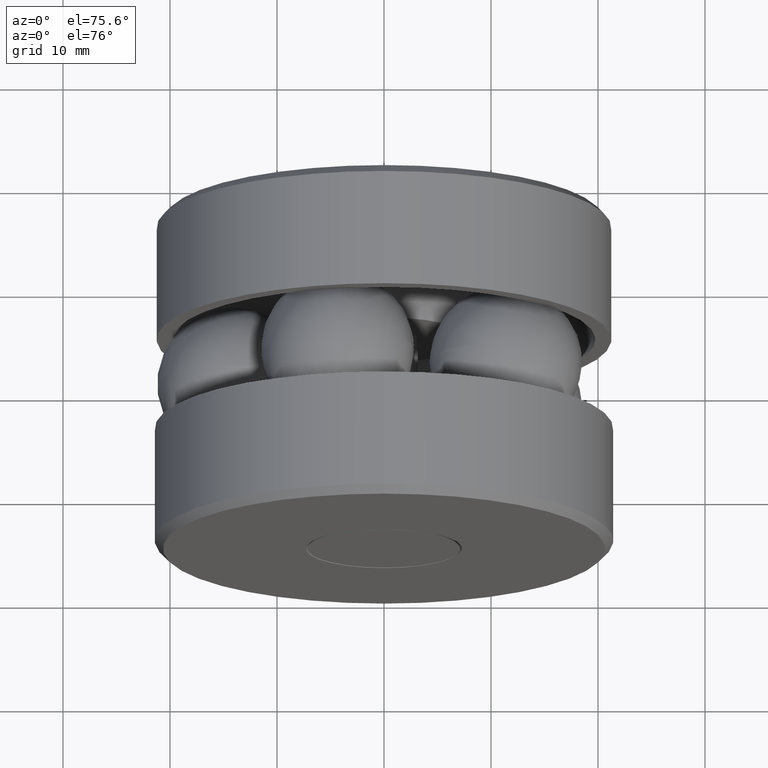
[diagram: clean part render]
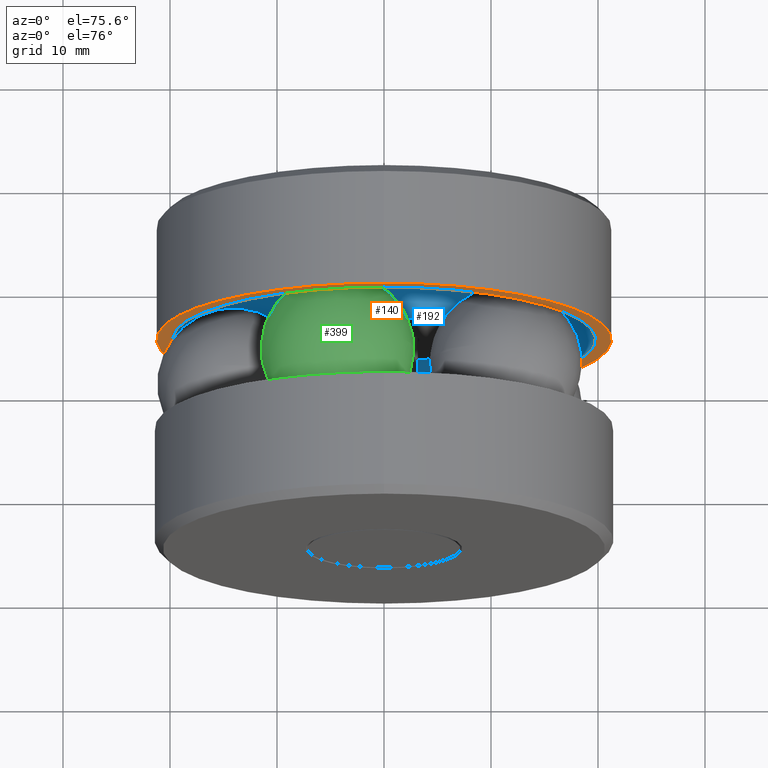
[diagram: same view with three faces highlighted in distinct colors, each labeled with its STEP entity id]
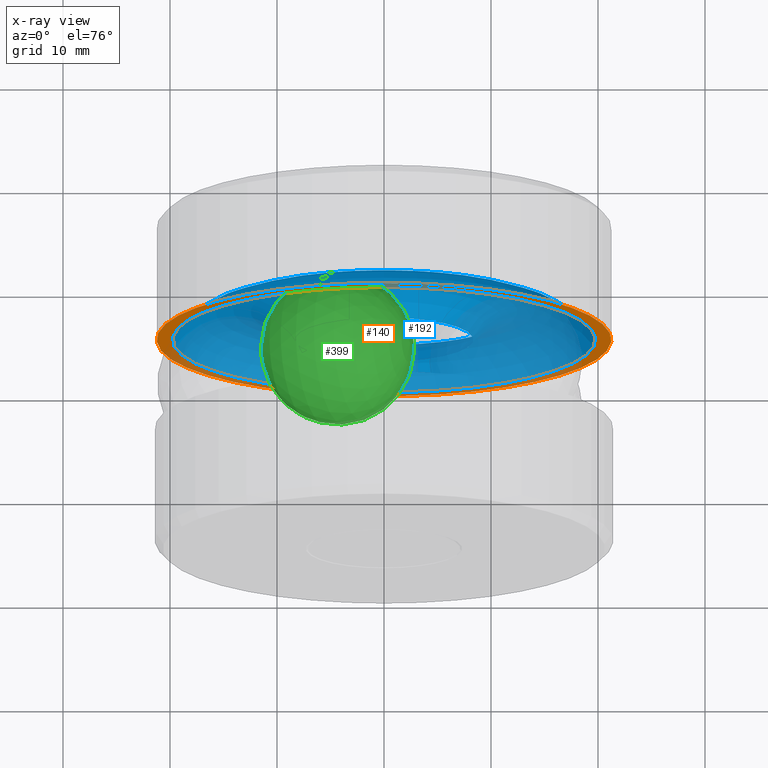
[diagram: x-ray of the same camera — body ghosted, the three highlighted faces saturated]
A machine part, auxiliary view with three faces highlighted in distinct colors.
The next image is the same camera in x-ray (body ghosted, the three faces saturated) — at least one of them is partly hidden behind the body in this view.
Their STEP definitions:

[orange] entity #140 — the highlighted planar face has unit normal (0, -1, 0).
#20 = EDGE_CURVE ( 'NONE', #21, #21, #477, .T. ) ;
#21 = VERTEX_POINT ( 'NONE', #332 ) ;
#68 = DIRECTION ( 'NONE',  ( -0.0000000000000000000, 1.000000000000000000, -0.0000000000000000000 ) ) ;
#76 = AXIS2_PLACEMENT_3D ( 'NONE', #457, #128, #117 ) ;
#91 = EDGE_CURVE ( 'NONE', #378, #378, #232, .T. ) ;
#100 = ORIENTED_EDGE ( 'NONE', *, *, #20, .F. ) ;
#113 = FACE_BOUND ( 'NONE', #311, .T. ) ;
#117 = DIRECTION ( 'NONE',  ( 0.0000000000000000000, 0.0000000000000000000, 1.000000000000000000 ) ) ;
#128 = DIRECTION ( 'NONE',  ( -0.0000000000000000000, 1.000000000000000000, -0.0000000000000000000 ) ) ;
#140 = ADVANCED_FACE ( 'NONE', ( #113, #517 ), #413, .T. ) ;
#209 = ORIENTED_EDGE ( 'NONE', *, *, #91, .T. ) ;
#232 = CIRCLE ( 'NONE', #303, 0.7785499999999998500 ) ;
#234 = EDGE_LOOP ( 'NONE', ( #100 ) ) ;
#244 = CARTESIAN_POINT ( 'NONE',  ( 0.0000000000000000000, 0.7936000000000000800, 0.0000000000000000000 ) ) ;
#250 = CARTESIAN_POINT ( 'NONE',  ( 0.0000000000000000000, 0.7936000000000000800, 0.7785499999999998500 ) ) ;
#263 = DIRECTION ( 'NONE',  ( 0.0000000000000000000, -0.0000000000000000000, -1.000000000000000000 ) ) ;
#265 = DIRECTION ( 'NONE',  ( 0.0000000000000000000, -1.000000000000000000, 0.0000000000000000000 ) ) ;
#303 = AXIS2_PLACEMENT_3D ( 'NONE', #244, #68, #437 ) ;
#311 = EDGE_LOOP ( 'NONE', ( #209 ) ) ;
#332 = CARTESIAN_POINT ( 'NONE',  ( 0.0000000000000000000, 0.7936000000000000800, 0.8367499999999999900 ) ) ;
#378 = VERTEX_POINT ( 'NONE', #250 ) ;
#387 = CARTESIAN_POINT ( 'NONE',  ( -0.8367499999999999900, 0.7936000000000000800, 0.0000000000000000000 ) ) ;
#408 = AXIS2_PLACEMENT_3D ( 'NONE', #387, #265, #263 ) ;
#413 = PLANE ( 'NONE',  #408 ) ;
#437 = DIRECTION ( 'NONE',  ( 0.0000000000000000000, 0.0000000000000000000, 1.000000000000000000 ) ) ;
#457 = CARTESIAN_POINT ( 'NONE',  ( 0.0000000000000000000, 0.7936000000000000800, 0.0000000000000000000 ) ) ;
#477 = CIRCLE ( 'NONE', #76, 0.8367499999999999900 ) ;
#517 = FACE_OUTER_BOUND ( 'NONE', #234, .T. ) ;

[blue] entity #192 — the highlighted toroidal blend (fillet) surface has major radius 14.0652 mm and minor (blend) radius 7.1374 mm.
#51 = ORIENTED_EDGE ( 'NONE', *, *, #288, .T. ) ;
#68 = DIRECTION ( 'NONE',  ( -0.0000000000000000000, 1.000000000000000000, -0.0000000000000000000 ) ) ;
#77 = FACE_OUTER_BOUND ( 'NONE', #229, .T. ) ;
#91 = EDGE_CURVE ( 'NONE', #378, #378, #232, .T. ) ;
#192 = ADVANCED_FACE ( 'NONE', ( #77, #427 ), #329, .F. ) ;
#196 = EDGE_LOOP ( 'NONE', ( #433 ) ) ;
#220 = DIRECTION ( 'NONE',  ( -0.0000000000000000000, 1.000000000000000000, -0.0000000000000000000 ) ) ;
#226 = CARTESIAN_POINT ( 'NONE',  ( 0.0000000000000000000, 0.6250000000000000000, 0.0000000000000000000 ) ) ;
#229 = EDGE_LOOP ( 'NONE', ( #51 ) ) ;
#232 = CIRCLE ( 'NONE', #303, 0.7785499999999998500 ) ;
#244 = CARTESIAN_POINT ( 'NONE',  ( 0.0000000000000000000, 0.7936000000000000800, 0.0000000000000000000 ) ) ;
#250 = CARTESIAN_POINT ( 'NONE',  ( 0.0000000000000000000, 0.7936000000000000800, 0.7785499999999998500 ) ) ;
#261 = VERTEX_POINT ( 'NONE', #537 ) ;
#288 = EDGE_CURVE ( 'NONE', #261, #261, #385, .T. ) ;
#297 = AXIS2_PLACEMENT_3D ( 'NONE', #410, #220, #488 ) ;
#299 = DIRECTION ( 'NONE',  ( 0.0000000000000000000, 0.0000000000000000000, 1.000000000000000000 ) ) ;
#303 = AXIS2_PLACEMENT_3D ( 'NONE', #244, #68, #437 ) ;
#329 = TOROIDAL_SURFACE ( 'NONE', #499, 0.5537499999999999600, 0.2809999999999999700 ) ;
#339 = DIRECTION ( 'NONE',  ( -0.0000000000000000000, 1.000000000000000000, -0.0000000000000000000 ) ) ;
#378 = VERTEX_POINT ( 'NONE', #250 ) ;
#385 = CIRCLE ( 'NONE', #297, 0.3289500000000001300 ) ;
#410 = CARTESIAN_POINT ( 'NONE',  ( 0.0000000000000000000, 0.7936000000000000800, 0.0000000000000000000 ) ) ;
#427 = FACE_OUTER_BOUND ( 'NONE', #196, .T. ) ;
#433 = ORIENTED_EDGE ( 'NONE', *, *, #91, .F. ) ;
#437 = DIRECTION ( 'NONE',  ( 0.0000000000000000000, 0.0000000000000000000, 1.000000000000000000 ) ) ;
#488 = DIRECTION ( 'NONE',  ( 0.0000000000000000000, 0.0000000000000000000, 1.000000000000000000 ) ) ;
#499 = AXIS2_PLACEMENT_3D ( 'NONE', #226, #339, #299 ) ;
#537 = CARTESIAN_POINT ( 'NONE',  ( 0.0000000000000000000, 0.7936000000000000800, 0.3289500000000001300 ) ) ;

[green] entity #399 — the highlighted spherical surface has radius 7.1374 mm.
#135 = DIRECTION ( 'NONE',  ( 0.3090169943749447300, 0.0000000000000000000, -0.9510565162951544200 ) ) ;
#142 = DIRECTION ( 'NONE',  ( -0.9510565162951544200, 0.0000000000000000000, -0.3090169943749447300 ) ) ;
#399 = ADVANCED_FACE ( 'NONE', ( ), #526, .T. ) ;
#511 = AXIS2_PLACEMENT_3D ( 'NONE', #535, #142, #135 ) ;
#526 = SPHERICAL_SURFACE ( 'NONE', #511, 0.2810000000000000800 ) ;
#535 = CARTESIAN_POINT ( 'NONE',  ( -0.1711181606351256900, 0.6250000000000000000, 0.5266475458984419800 ) ) ;